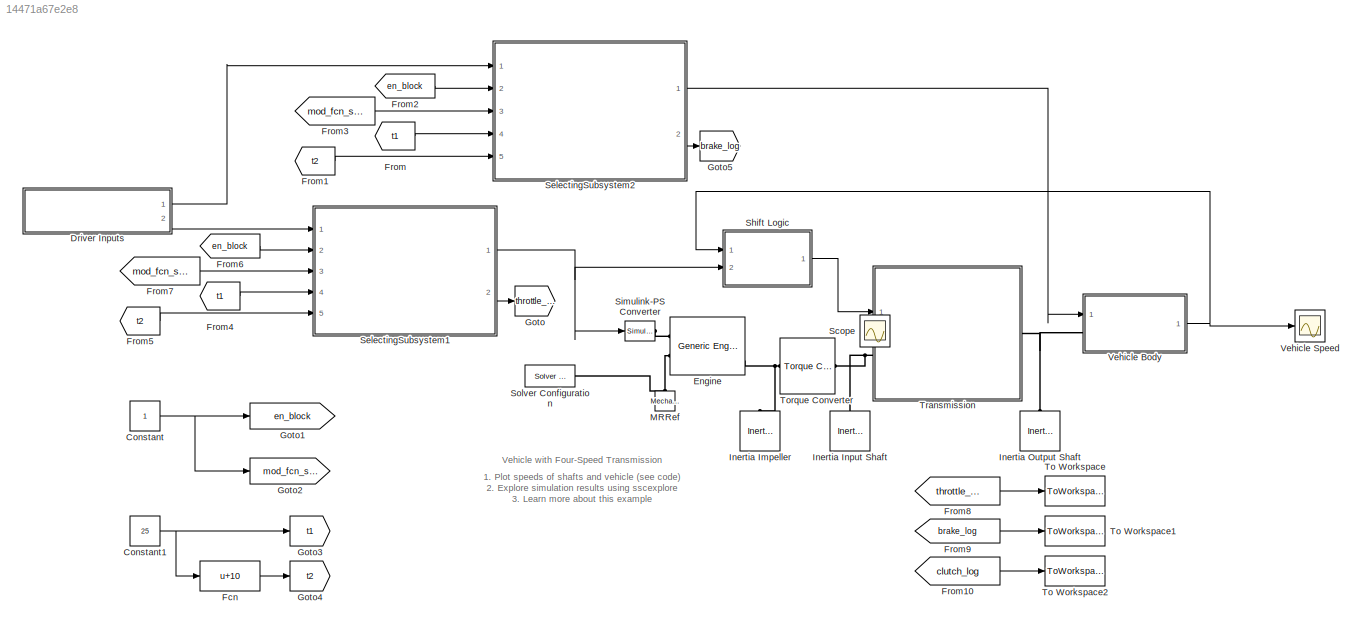
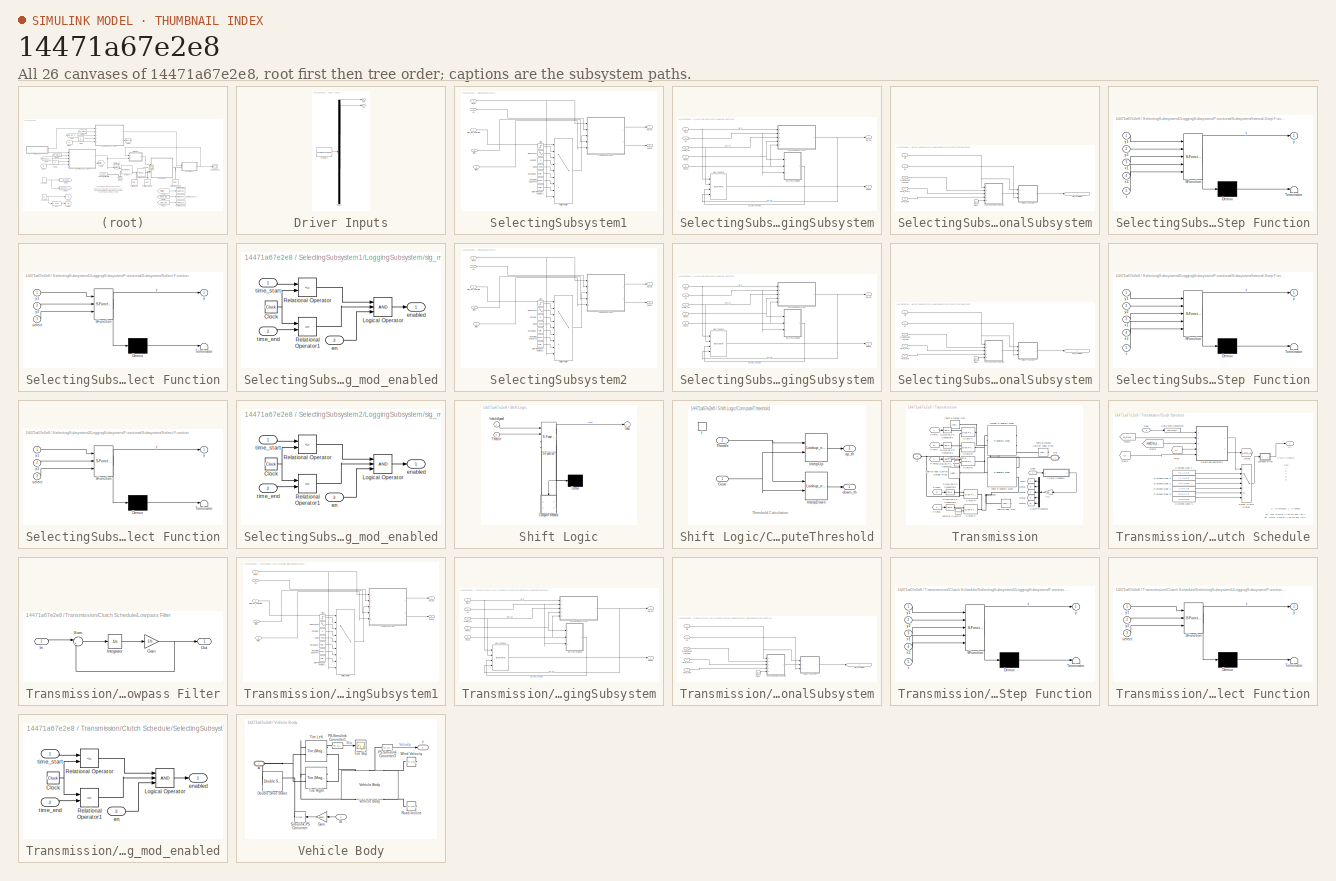
[diagram: thumbnail index - all 26 canvases of the model, root first then tree order]
MODEL slx_14471a67e2e8
KIND model
CONFIG AbsTol = 1e-3
CONFIG EnableMultiTasking = on
CONFIG FixedStep = 1e-3
CONFIG MaxStep = auto
CONFIG MinStep = auto
CONFIG RelTol = 1e-3
CONFIG SampleTimeConstraint = Unconstrained
CONFIG Solver = VariableStepAuto
CONFIG SolverName = VariableStepAuto
CONFIG StartTime = 0.0
CONFIG StopTime = 50
WORKSPACE source: MAT-file member
WORKSPACE DOWN_TABLE = [0 0 0 0 0 0 5 5 5 5 30 30 ... (24 elements, 6x4)]
BLOCK [Constant] Constant
BLOCK [Constant] Constant1
  Value = 25
BLOCK [SubSystem] Driver Inputs
  ClipboardFcn = sigbuilder_block('clipboard');
  CloseFcn = sigbuilder_block('close');
  ContinueFcn = sigbuilder_block('continue')
  CopyFcn = sigbuilder_block('copy');
  DeleteFcn = sigbuilder_block('delete');
  LoadFcn = sigbuilder_block('load');
  MaskHideContents = on
  ModelCloseFcn = sigbuilder_block('modelClose');
  NameChangeFcn = sigbuilder_block('namechange');
  OpenFcn = sigbuilder_block('open',[260 115.5 413.5 322.5 ]);
  PauseFcn = sigbuilder_block('pause')
  Ports = [0, 2]
  PreSaveFcn = sigbuilder_block('preSave');
  RequestExecContextInheritance = off
  StartFcn = sigbuilder_block('start');
  StopFcn = sigbuilder_block('stop');
  Tag = STV Subsys
BLOCK [Outport] Driver Inputs/Brk
  IconDisplay = Port number
  Tag = STV Outport
BLOCK [Demux] Driver Inputs/Demux
  Outputs = 2
  Ports = [1, 2]
  Tag = STV Demux
BLOCK [FromWorkspace] Driver Inputs/FromWs
  SampleTime = 0
  Tag = STV FromWs
  VariableName = tuvar
  ZeroCross = on
BLOCK [Outport] Driver Inputs/Thr
  IconDisplay = Port number
  Port = 2
  Tag = STV Outport
BLOCK [Reference] Engine  REF=sdl_lib/Engines/Generic Engine
  Ports = [0, 0, 0, 0, 0, 2, 3]
  SourceBlock = sdl_lib/Engines/Generic Engine
  SourceProductBaseCode = LD
  SourceProductName = Simscape Driveline
  SourceType = Generic Engine
BLOCK [Fcn] Fcn
  Expr = u+10
BLOCK [From] From
  GotoTag = t1
BLOCK [From] From1
  GotoTag = t2
BLOCK [From] From10
  GotoTag = clutch_log
BLOCK [From] From2
  GotoTag = en_block
BLOCK [From] From3
  GotoTag = mod_fcn_sel
BLOCK [From] From4
  GotoTag = t1
BLOCK [From] From5
  GotoTag = t2
BLOCK [From] From6
  GotoTag = en_block
BLOCK [From] From7
  GotoTag = mod_fcn_sel
BLOCK [From] From8
  GotoTag = throttle_log
BLOCK [From] From9
  GotoTag = brake_log
BLOCK [Goto] Goto
  GotoTag = throttle_log
BLOCK [Goto] Goto1
  GotoTag = en_block
BLOCK [Goto] Goto2
  GotoTag = mod_fcn_sel
BLOCK [Goto] Goto3
  GotoTag = t1
BLOCK [Goto] Goto4
  GotoTag = t2
BLOCK [Goto] Goto5
  GotoTag = brake_log
BLOCK [Reference] Inertia Impeller  REF=fl_lib/Mechanical/Rotational Elements/Inertia
  Ports = [0, 0, 0, 0, 0, 1]
  SourceBlock = fl_lib/Mechanical/Rotational Elements/Inertia
  SourceProductBaseCode = SS
  SourceProductName = Simscape
  SourceType = Inertia
BLOCK [Reference] Inertia Input Shaft  REF=fl_lib/Mechanical/Rotational Elements/Inertia
  Ports = [0, 0, 0, 0, 0, 1]
  SourceBlock = fl_lib/Mechanical/Rotational Elements/Inertia
  SourceProductBaseCode = SS
  SourceProductName = Simscape
  SourceType = Inertia
BLOCK [Reference] Inertia Output Shaft  REF=fl_lib/Mechanical/Rotational Elements/Inertia
  Ports = [0, 0, 0, 0, 0, 1]
  SourceBlock = fl_lib/Mechanical/Rotational Elements/Inertia
  SourceProductBaseCode = SS
  SourceProductName = Simscape
  SourceType = Inertia
BLOCK [Reference] MRRef  REF=fl_lib/Mechanical/Rotational Elements/Mechanical
Rotational Reference
  Ports = [0, 0, 0, 0, 0, 1]
  SourceBlock = fl_lib/Mechanical/Rotational Elements/Mechanical\nRotational Reference
  SourceProductBaseCode = SS
  SourceProductName = Simscape
  SourceType = Mechanical\nRotational Reference
BLOCK [Scope] Scope
  Floating = off
  IOType = viewer
  NumInputPorts = 1
  Ports = []
  ScopeSpecificationString = Simulink.scopes.TimeScopeBlockCfg('CurrentConfiguration', extmgr.ConfigurationSet(extmgr.Configuration('Core','General UI',true),extmgr.Configuration('Core','Source UI',true),extmgr.Configuration('Sources','WiredSimulink',true,'DataLoggingVariableName','ScopeData1'),extmgr.Configuration('Visuals','Time Domain',true,'SerializedDisplays',{struct('MinYLimReal','0.625','MaxYLimReal','4.375','YLabelRea...<+2028ch>
BLOCK [SubSystem] SelectingSubsystem1
  Ports = [5, 2]
  RequestExecContextInheritance = off
BLOCK [Reference] SelectingSubsystem1/Chirp Signal  REF=simulink/Sources/Chirp Signal
  Ports = [0, 1]
  SourceBlock = simulink/Sources/Chirp Signal
  SourceProductBaseCode = SL
  SourceProductName = Simulink
  SourceType = chirp
BLOCK [Constant] SelectingSubsystem1/Constant
  Value = pi
BLOCK [SubSystem] SelectingSubsystem1/LoggingSubsystem
  Ports = [5, 2]
  RequestExecContextInheritance = off
BLOCK [BusCreator] SelectingSubsystem1/LoggingSubsystem/Bus Creator
  DisplayOption = bar
  InheritFromInputs = on
  Inputs = sig_in,mod_fcn,sig_mod_enabled,sig_out
  Ports = [4, 1]
BLOCK [SubSystem] SelectingSubsystem1/LoggingSubsystem/FunctionalSubsystem
  Ports = [5, 1]
  RequestExecContextInheritance = off
  TreatAsAtomicUnit = on
BLOCK [Clock] SelectingSubsystem1/LoggingSubsystem/FunctionalSubsystem/Clock
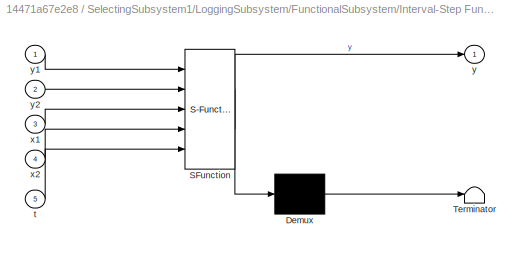
BLOCK [SubSystem] SelectingSubsystem1/LoggingSubsystem/FunctionalSubsystem/Interval-Step Function
  ErrorFcn = Stateflow.Translate.translate
  PermitHierarchicalResolution = ExplicitOnly
  Ports = [5, 1]
  RequestExecContextInheritance = off
  SFBlockType = MATLAB Function
  TreatAsAtomicUnit = on
BLOCK [Demux] SelectingSubsystem1/LoggingSubsystem/FunctionalSubsystem/Interval-Step Function/ Demux 
  Outputs = 1
  Ports = [1, 1]
BLOCK [S-Function] SelectingSubsystem1/LoggingSubsystem/FunctionalSubsystem/Interval-Step Function/ SFunction 
  EnableBusSupport = on
  FunctionName = sf_sfun
  PortCounts = [5 2]
  Ports = [5, 2]
  SFcnIsStateOwnerBlock = off
  SFunctionDeploymentMode = off
  Tag = Stateflow S-Function sdl_car_customized 6
BLOCK [Terminator] SelectingSubsystem1/LoggingSubsystem/FunctionalSubsystem/Interval-Step Function/ Terminator 
BLOCK [Inport] SelectingSubsystem1/LoggingSubsystem/FunctionalSubsystem/Interval-Step Function/t
  IconDisplay = Port number
  Port = 5
BLOCK [Inport] SelectingSubsystem1/LoggingSubsystem/FunctionalSubsystem/Interval-Step Function/x1
  IconDisplay = Port number
  Port = 3
BLOCK [Inport] SelectingSubsystem1/LoggingSubsystem/FunctionalSubsystem/Interval-Step Function/x2
  IconDisplay = Port number
  Port = 4
BLOCK [Outport] SelectingSubsystem1/LoggingSubsystem/FunctionalSubsystem/Interval-Step Function/y
  IconDisplay = Port number
BLOCK [Inport] SelectingSubsystem1/LoggingSubsystem/FunctionalSubsystem/Interval-Step Function/y1
  IconDisplay = Port number
BLOCK [Inport] SelectingSubsystem1/LoggingSubsystem/FunctionalSubsystem/Interval-Step Function/y2
  IconDisplay = Port number
  Port = 2
BLOCK [SubSystem] SelectingSubsystem1/LoggingSubsystem/FunctionalSubsystem/Select Function
  ErrorFcn = Stateflow.Translate.translate
  PermitHierarchicalResolution = ExplicitOnly
  Ports = [3, 1]
  RequestExecContextInheritance = off
  SFBlockType = MATLAB Function
  TreatAsAtomicUnit = on
BLOCK [Demux] SelectingSubsystem1/LoggingSubsystem/FunctionalSubsystem/Select Function/ Demux 
  Outputs = 1
  Ports = [1, 1]
BLOCK [S-Function] SelectingSubsystem1/LoggingSubsystem/FunctionalSubsystem/Select Function/ SFunction 
  EnableBusSupport = on
  FunctionName = sf_sfun
  PortCounts = [3 2]
  Ports = [3, 2]
  SFcnIsStateOwnerBlock = off
  SFunctionDeploymentMode = off
  Tag = Stateflow S-Function sdl_car_customized 7
BLOCK [Terminator] SelectingSubsystem1/LoggingSubsystem/FunctionalSubsystem/Select Function/ Terminator 
BLOCK [Inport] SelectingSubsystem1/LoggingSubsystem/FunctionalSubsystem/Select Function/select
  IconDisplay = Port number
  Port = 3
BLOCK [Outport] SelectingSubsystem1/LoggingSubsystem/FunctionalSubsystem/Select Function/y
  IconDisplay = Port number
BLOCK [Inport] SelectingSubsystem1/LoggingSubsystem/FunctionalSubsystem/Select Function/y1
  IconDisplay = Port number
BLOCK [Inport] SelectingSubsystem1/LoggingSubsystem/FunctionalSubsystem/Select Function/y2
  IconDisplay = Port number
  Port = 2
BLOCK [Inport] SelectingSubsystem1/LoggingSubsystem/FunctionalSubsystem/en
  IconDisplay = Port number
  Port = 2
BLOCK [Inport] SelectingSubsystem1/LoggingSubsystem/FunctionalSubsystem/modification function
  IconDisplay = Port number
  Port = 3
BLOCK [Inport] SelectingSubsystem1/LoggingSubsystem/FunctionalSubsystem/sig
  IconDisplay = Port number
BLOCK [Outport] SelectingSubsystem1/LoggingSubsystem/FunctionalSubsystem/sig_modified
  IconDisplay = Port number
BLOCK [Inport] SelectingSubsystem1/LoggingSubsystem/FunctionalSubsystem/time_end
  IconDisplay = Port number
  Port = 5
BLOCK [Inport] SelectingSubsystem1/LoggingSubsystem/FunctionalSubsystem/time_start
  IconDisplay = Port number
  Port = 4
BLOCK [Inport] SelectingSubsystem1/LoggingSubsystem/en
  IconDisplay = Port number
  Port = 2
BLOCK [Outport] SelectingSubsystem1/LoggingSubsystem/logbus
  IconDisplay = Port number
  Port = 2
BLOCK [Inport] SelectingSubsystem1/LoggingSubsystem/mod_fcn
  IconDisplay = Port number
  Port = 3
BLOCK [Inport] SelectingSubsystem1/LoggingSubsystem/sig_in
  IconDisplay = Port number
BLOCK [SubSystem] SelectingSubsystem1/LoggingSubsystem/sig_mod_enabled
  Ports = [3, 1]
  RequestExecContextInheritance = off
BLOCK [Clock] SelectingSubsystem1/LoggingSubsystem/sig_mod_enabled/Clock
BLOCK [Logic] SelectingSubsystem1/LoggingSubsystem/sig_mod_enabled/Logical Operator
  AllPortsSameDT = off
  Inputs = 3
  OutDataTypeStr = boolean
  Ports = [3, 1]
BLOCK [RelationalOperator] SelectingSubsystem1/LoggingSubsystem/sig_mod_enabled/Relational Operator
  InputSameDT = off
  Operator = <=
  OutDataTypeStr = boolean
  Ports = [2, 1]
  RndMeth = Simplest
BLOCK [RelationalOperator] SelectingSubsystem1/LoggingSubsystem/sig_mod_enabled/Relational Operator1
  InputSameDT = off
  Operator = <=
  OutDataTypeStr = boolean
  Ports = [2, 1]
  RndMeth = Simplest
BLOCK [Inport] SelectingSubsystem1/LoggingSubsystem/sig_mod_enabled/en
  IconDisplay = Port number
  Port = 3
BLOCK [Outport] SelectingSubsystem1/LoggingSubsystem/sig_mod_enabled/enabled
  IconDisplay = Port number
BLOCK [Inport] SelectingSubsystem1/LoggingSubsystem/sig_mod_enabled/time_end
  IconDisplay = Port number
  Port = 2
BLOCK [Inport] SelectingSubsystem1/LoggingSubsystem/sig_mod_enabled/time_start
  IconDisplay = Port number
BLOCK [Outport] SelectingSubsystem1/LoggingSubsystem/sig_out
  IconDisplay = Port number
BLOCK [Inport] SelectingSubsystem1/LoggingSubsystem/time1
  IconDisplay = Port number
  Port = 4
BLOCK [Inport] SelectingSubsystem1/LoggingSubsystem/time2
  IconDisplay = Port number
  Port = 5
BLOCK [MultiPortSwitch] SelectingSubsystem1/Multiport Switch
  DataPortForDefault = Additional data port
  DiagnosticForDefault = Warning
  InputSameDT = off
  Inputs = 7
  Ports = [9, 1]
  SaturateOnIntegerOverflow = off
BLOCK [Reference] SelectingSubsystem1/Ramp  REF=simulink/Sources/Ramp
  Ports = [0, 1]
  SourceBlock = simulink/Sources/Ramp
  SourceProductBaseCode = SL
  SourceProductName = Simulink
  SourceType = Ramp
BLOCK [Reference] SelectingSubsystem1/Repeating Sequence  REF=simulink/Sources/Repeating
Sequence
  Ports = [0, 1]
  SourceBlock = simulink/Sources/Repeating\nSequence
  SourceProductBaseCode = SL
  SourceProductName = Simulink
  SourceType = Repeating table
BLOCK [Sin] SelectingSubsystem1/Sine Wave1
  Frequency = 1000
  Ports = [0, 1]
  SampleTime = 0
BLOCK [Step] SelectingSubsystem1/Step
  SampleTime = 0
  Time = 5
BLOCK [UniformRandomNumber] SelectingSubsystem1/Uniform Random Number1
  Maximum = 10
  Minimum = -10
  SampleTime = 0.1
  Seed = randi(intmax)
BLOCK [Inport] SelectingSubsystem1/en
  IconDisplay = Port number
  Port = 2
BLOCK [Outport] SelectingSubsystem1/logbus
  IconDisplay = Port number
  Port = 2
BLOCK [Inport] SelectingSubsystem1/mod_fcn_select[1:8]
  IconDisplay = Port number
  Port = 3
BLOCK [Inport] SelectingSubsystem1/sig_in
  IconDisplay = Port number
BLOCK [Outport] SelectingSubsystem1/sig_out
  IconDisplay = Port number
BLOCK [Inport] SelectingSubsystem1/time1
  IconDisplay = Port number
  Port = 4
BLOCK [Inport] SelectingSubsystem1/time2
  IconDisplay = Port number
  Port = 5
BLOCK [SubSystem] SelectingSubsystem2
  Ports = [5, 2]
  RequestExecContextInheritance = off
BLOCK [Reference] SelectingSubsystem2/Chirp Signal  REF=simulink/Sources/Chirp Signal
  Ports = [0, 1]
  SourceBlock = simulink/Sources/Chirp Signal
  SourceProductBaseCode = SL
  SourceProductName = Simulink
  SourceType = chirp
BLOCK [Constant] SelectingSubsystem2/Constant
  Value = pi
BLOCK [SubSystem] SelectingSubsystem2/LoggingSubsystem
  Ports = [5, 2]
  RequestExecContextInheritance = off
BLOCK [BusCreator] SelectingSubsystem2/LoggingSubsystem/Bus Creator
  DisplayOption = bar
  InheritFromInputs = on
  Inputs = sig_in,mod_fcn,sig_mod_enabled,sig_out
  Ports = [4, 1]
BLOCK [SubSystem] SelectingSubsystem2/LoggingSubsystem/FunctionalSubsystem
  Ports = [5, 1]
  RequestExecContextInheritance = off
  TreatAsAtomicUnit = on
BLOCK [Clock] SelectingSubsystem2/LoggingSubsystem/FunctionalSubsystem/Clock
BLOCK [SubSystem] SelectingSubsystem2/LoggingSubsystem/FunctionalSubsystem/Interval-Step Function
  ErrorFcn = Stateflow.Translate.translate
  PermitHierarchicalResolution = ExplicitOnly
  Ports = [5, 1]
  RequestExecContextInheritance = off
  SFBlockType = MATLAB Function
  TreatAsAtomicUnit = on
BLOCK [Demux] SelectingSubsystem2/LoggingSubsystem/FunctionalSubsystem/Interval-Step Function/ Demux 
  Outputs = 1
  Ports = [1, 1]
BLOCK [S-Function] SelectingSubsystem2/LoggingSubsystem/FunctionalSubsystem/Interval-Step Function/ SFunction 
  EnableBusSupport = on
  FunctionName = sf_sfun
  PortCounts = [5 2]
  Ports = [5, 2]
  SFcnIsStateOwnerBlock = off
  SFunctionDeploymentMode = off
  Tag = Stateflow S-Function sdl_car_customized 2
BLOCK [Terminator] SelectingSubsystem2/LoggingSubsystem/FunctionalSubsystem/Interval-Step Function/ Terminator 
BLOCK [Inport] SelectingSubsystem2/LoggingSubsystem/FunctionalSubsystem/Interval-Step Function/t
  IconDisplay = Port number
  Port = 5
BLOCK [Inport] SelectingSubsystem2/LoggingSubsystem/FunctionalSubsystem/Interval-Step Function/x1
  IconDisplay = Port number
  Port = 3
BLOCK [Inport] SelectingSubsystem2/LoggingSubsystem/FunctionalSubsystem/Interval-Step Function/x2
  IconDisplay = Port number
  Port = 4
BLOCK [Outport] SelectingSubsystem2/LoggingSubsystem/FunctionalSubsystem/Interval-Step Function/y
  IconDisplay = Port number
BLOCK [Inport] SelectingSubsystem2/LoggingSubsystem/FunctionalSubsystem/Interval-Step Function/y1
  IconDisplay = Port number
BLOCK [Inport] SelectingSubsystem2/LoggingSubsystem/FunctionalSubsystem/Interval-Step Function/y2
  IconDisplay = Port number
  Port = 2
BLOCK [SubSystem] SelectingSubsystem2/LoggingSubsystem/FunctionalSubsystem/Select Function
  ErrorFcn = Stateflow.Translate.translate
  PermitHierarchicalResolution = ExplicitOnly
  Ports = [3, 1]
  RequestExecContextInheritance = off
  SFBlockType = MATLAB Function
  TreatAsAtomicUnit = on
BLOCK [Demux] SelectingSubsystem2/LoggingSubsystem/FunctionalSubsystem/Select Function/ Demux 
  Outputs = 1
  Ports = [1, 1]
BLOCK [S-Function] SelectingSubsystem2/LoggingSubsystem/FunctionalSubsystem/Select Function/ SFunction 
  EnableBusSupport = on
  FunctionName = sf_sfun
  PortCounts = [3 2]
  Ports = [3, 2]
  SFcnIsStateOwnerBlock = off
  SFunctionDeploymentMode = off
  Tag = Stateflow S-Function sdl_car_customized 4
BLOCK [Terminator] SelectingSubsystem2/LoggingSubsystem/FunctionalSubsystem/Select Function/ Terminator 
BLOCK [Inport] SelectingSubsystem2/LoggingSubsystem/FunctionalSubsystem/Select Function/select
  IconDisplay = Port number
  Port = 3
BLOCK [Outport] SelectingSubsystem2/LoggingSubsystem/FunctionalSubsystem/Select Function/y
  IconDisplay = Port number
BLOCK [Inport] SelectingSubsystem2/LoggingSubsystem/FunctionalSubsystem/Select Function/y1
  IconDisplay = Port number
BLOCK [Inport] SelectingSubsystem2/LoggingSubsystem/FunctionalSubsystem/Select Function/y2
  IconDisplay = Port number
  Port = 2
BLOCK [Inport] SelectingSubsystem2/LoggingSubsystem/FunctionalSubsystem/en
  IconDisplay = Port number
  Port = 2
BLOCK [Inport] SelectingSubsystem2/LoggingSubsystem/FunctionalSubsystem/modification function
  IconDisplay = Port number
  Port = 3
BLOCK [Inport] SelectingSubsystem2/LoggingSubsystem/FunctionalSubsystem/sig
  IconDisplay = Port number
BLOCK [Outport] SelectingSubsystem2/LoggingSubsystem/FunctionalSubsystem/sig_modified
  IconDisplay = Port number
BLOCK [Inport] SelectingSubsystem2/LoggingSubsystem/FunctionalSubsystem/time_end
  IconDisplay = Port number
  Port = 5
BLOCK [Inport] SelectingSubsystem2/LoggingSubsystem/FunctionalSubsystem/time_start
  IconDisplay = Port number
  Port = 4
BLOCK [Inport] SelectingSubsystem2/LoggingSubsystem/en
  IconDisplay = Port number
  Port = 2
BLOCK [Outport] SelectingSubsystem2/LoggingSubsystem/logbus
  IconDisplay = Port number
  Port = 2
BLOCK [Inport] SelectingSubsystem2/LoggingSubsystem/mod_fcn
  IconDisplay = Port number
  Port = 3
BLOCK [Inport] SelectingSubsystem2/LoggingSubsystem/sig_in
  IconDisplay = Port number
BLOCK [SubSystem] SelectingSubsystem2/LoggingSubsystem/sig_mod_enabled
  Ports = [3, 1]
  RequestExecContextInheritance = off
BLOCK [Clock] SelectingSubsystem2/LoggingSubsystem/sig_mod_enabled/Clock
BLOCK [Logic] SelectingSubsystem2/LoggingSubsystem/sig_mod_enabled/Logical Operator
  AllPortsSameDT = off
  Inputs = 3
  OutDataTypeStr = boolean
  Ports = [3, 1]
BLOCK [RelationalOperator] SelectingSubsystem2/LoggingSubsystem/sig_mod_enabled/Relational Operator
  InputSameDT = off
  Operator = <=
  OutDataTypeStr = boolean
  Ports = [2, 1]
  RndMeth = Simplest
BLOCK [RelationalOperator] SelectingSubsystem2/LoggingSubsystem/sig_mod_enabled/Relational Operator1
  InputSameDT = off
  Operator = <=
  OutDataTypeStr = boolean
  Ports = [2, 1]
  RndMeth = Simplest
BLOCK [Inport] SelectingSubsystem2/LoggingSubsystem/sig_mod_enabled/en
  IconDisplay = Port number
  Port = 3
BLOCK [Outport] SelectingSubsystem2/LoggingSubsystem/sig_mod_enabled/enabled
  IconDisplay = Port number
BLOCK [Inport] SelectingSubsystem2/LoggingSubsystem/sig_mod_enabled/time_end
  IconDisplay = Port number
  Port = 2
BLOCK [Inport] SelectingSubsystem2/LoggingSubsystem/sig_mod_enabled/time_start
  IconDisplay = Port number
BLOCK [Outport] SelectingSubsystem2/LoggingSubsystem/sig_out
  IconDisplay = Port number
BLOCK [Inport] SelectingSubsystem2/LoggingSubsystem/time1
  IconDisplay = Port number
  Port = 4
BLOCK [Inport] SelectingSubsystem2/LoggingSubsystem/time2
  IconDisplay = Port number
  Port = 5
BLOCK [MultiPortSwitch] SelectingSubsystem2/Multiport Switch
  DataPortForDefault = Additional data port
  DiagnosticForDefault = Warning
  InputSameDT = off
  Inputs = 7
  Ports = [9, 1]
  SaturateOnIntegerOverflow = off
BLOCK [Reference] SelectingSubsystem2/Ramp  REF=simulink/Sources/Ramp
  Ports = [0, 1]
  SourceBlock = simulink/Sources/Ramp
  SourceProductBaseCode = SL
  SourceProductName = Simulink
  SourceType = Ramp
BLOCK [Reference] SelectingSubsystem2/Repeating Sequence  REF=simulink/Sources/Repeating
Sequence
  Ports = [0, 1]
  SourceBlock = simulink/Sources/Repeating\nSequence
  SourceProductBaseCode = SL
  SourceProductName = Simulink
  SourceType = Repeating table
BLOCK [Sin] SelectingSubsystem2/Sine Wave1
  Frequency = 1000
  Ports = [0, 1]
  SampleTime = 0
BLOCK [Step] SelectingSubsystem2/Step
  SampleTime = 0
  Time = 5
BLOCK [UniformRandomNumber] SelectingSubsystem2/Uniform Random Number1
  Maximum = 10
  Minimum = -10
  SampleTime = 0.1
  Seed = randi(intmax)
BLOCK [Inport] SelectingSubsystem2/en
  IconDisplay = Port number
  Port = 2
BLOCK [Outport] SelectingSubsystem2/logbus
  IconDisplay = Port number
  Port = 2
BLOCK [Inport] SelectingSubsystem2/mod_fcn_select[1:8]
  IconDisplay = Port number
  Port = 3
BLOCK [Inport] SelectingSubsystem2/sig_in
  IconDisplay = Port number
BLOCK [Outport] SelectingSubsystem2/sig_out
  IconDisplay = Port number
BLOCK [Inport] SelectingSubsystem2/time1
  IconDisplay = Port number
  Port = 4
BLOCK [Inport] SelectingSubsystem2/time2
  IconDisplay = Port number
  Port = 5
BLOCK [SubSystem] Shift Logic
  ErrorFcn = Stateflow.Translate.translate
  PermitHierarchicalResolution = ExplicitOnly
  Ports = [2, 1]
  RequestExecContextInheritance = off
  SFBlockType = Chart
  Tag = PublishSubsystem
  TreatAsAtomicUnit = on
BLOCK [Demux] Shift Logic/ Demux 
  Outputs = 1
  Ports = [1, 1]
BLOCK [S-Function] Shift Logic/ SFunction 
  EnableBusSupport = on
  FunctionName = sf_sfun
  Parameters = TWAIT
  PortCounts = [4 4]
  Ports = [4, 4]
  SFcnIsStateOwnerBlock = off
  SFunctionDeploymentMode = off
  Tag = Stateflow S-Function sdl_car_customized 1
BLOCK [SubSystem] Shift Logic/ComputeThreshold
  Ports = [2, 2, 0, 1]
  PreDeleteFcn = Stateflow.SLINSF.SimulinkMan.removePreDeleteFcn
  RequestExecContextInheritance = off
  UndoDeleteFcn = Stateflow.SLINSF.SimulinkMan.restorePreDeleteFcn
BLOCK [Inport] Shift Logic/ComputeThreshold/Gear
  IconDisplay = Port number
BLOCK [Lookup_n-D] Shift Logic/ComputeThreshold/InterpDown
  BreakpointsForDimension1 = DOWN_TH_BP
  BreakpointsForDimension2 = [1:4]
  InputSameDT = off
  LockScale = on
  LookupTableObject = ''
  OutDataTypeStr = double
  Ports = [2, 1]
  Table = DOWN_TABLE
BLOCK [Lookup_n-D] Shift Logic/ComputeThreshold/InterpUp
  BreakpointsForDimension1 = UP_TH_BP
  BreakpointsForDimension2 = [1:4]
  InputSameDT = off
  LockScale = on
  LookupTableObject = ''
  OutDataTypeStr = double
  Ports = [2, 1]
  Table = UP_TABLE
BLOCK [Inport] Shift Logic/ComputeThreshold/Throttle
  IconDisplay = Port number
  Port = 2
BLOCK [Outport] Shift Logic/ComputeThreshold/down_th
  IconDisplay = Port number
  InitialOutput = 0
BLOCK [TriggerPort] Shift Logic/ComputeThreshold/f
  CopyFcn = Stateflow.SLINSF.SimulinkMan.removeBlockPreDeleteFcn
  Ports = []
  PreDeleteFcn = Stateflow.SLINSF.SimulinkMan.unsafePredeleteFcn
  StatesWhenEnabling = held
  TriggerType = function-call
  VariantControl = Variant
BLOCK [Outport] Shift Logic/ComputeThreshold/up_th
  IconDisplay = Port number
  InitialOutput = 0
  Port = 2
BLOCK [Outport] Shift Logic/Gear
  IconDisplay = Port number
BLOCK [Inport] Shift Logic/Throttle
  IconDisplay = Port number
  Port = 2
BLOCK [Inport] Shift Logic/VehicleSpeed
  IconDisplay = Port number
BLOCK [Reference] Simulink-PS Converter  REF=nesl_utility/Simulink-PS
Converter
  Ports = [1, 0, 0, 0, 0, 0, 1]
  SourceBlock = nesl_utility/Simulink-PS\nConverter
  SourceProductBaseCode = SS
  SourceProductName = Simscape
  SourceType = Simulink-PS\nConverter
BLOCK [Reference] Solver Configuration  REF=nesl_utility/Solver
Configuration
  Ports = [0, 0, 0, 0, 0, 0, 1]
  SourceBlock = nesl_utility/Solver\nConfiguration
  SourceProductBaseCode = SS
  SourceProductName = Simscape
  SourceType = Solver\nConfiguration
BLOCK [ToWorkspace] To Workspace
  FixptAsFi = on
  MaxDataPoints = inf
  Ports = [1]
  SampleTime = -1
  SaveFormat = Timeseries
  VariableName = throttle_log
BLOCK [ToWorkspace] To Workspace1
  FixptAsFi = on
  MaxDataPoints = inf
  Ports = [1]
  SampleTime = -1
  SaveFormat = Timeseries
  VariableName = brake_log
BLOCK [ToWorkspace] To Workspace2
  FixptAsFi = on
  MaxDataPoints = inf
  Ports = [1]
  SampleTime = -1
  SaveFormat = Timeseries
  VariableName = clutch_log
BLOCK [Reference] Torque Converter  REF=sdl_lib/Couplings & Drives/Torque Converter
  Ports = [0, 0, 0, 0, 0, 1, 1]
  SourceBlock = sdl_lib/Couplings & Drives/Torque Converter
  SourceProductBaseCode = LD
  SourceProductName = Simscape Driveline
  SourceType = Torque Converter
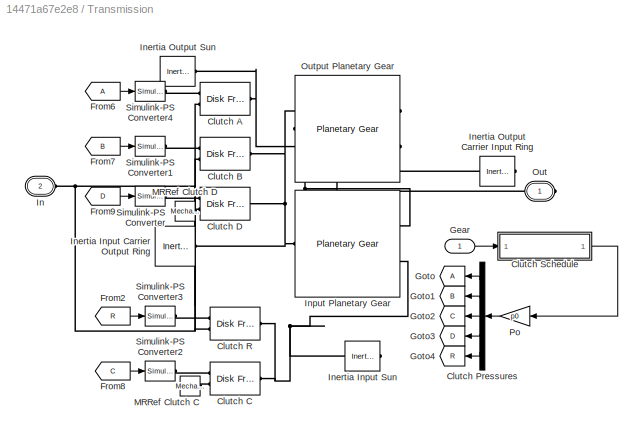
BLOCK [SubSystem] Transmission
  Ports = [1, 0, 0, 0, 0, 1, 1]
  RequestExecContextInheritance = off
  Tag = PublishSubsystem
BLOCK [Reference] Transmission/Clutch A  REF=sdl_lib/Clutches/Disk Friction Clutch
  Ports = [0, 0, 0, 0, 0, 2, 1]
  SourceBlock = sdl_lib/Clutches/Disk Friction Clutch
  SourceProductBaseCode = LD
  SourceProductName = Simscape Driveline
  SourceType = Disk Friction Clutch
BLOCK [Reference] Transmission/Clutch B  REF=sdl_lib/Clutches/Disk Friction Clutch
  Ports = [0, 0, 0, 0, 0, 2, 1]
  SourceBlock = sdl_lib/Clutches/Disk Friction Clutch
  SourceProductBaseCode = LD
  SourceProductName = Simscape Driveline
  SourceType = Disk Friction Clutch
BLOCK [Reference] Transmission/Clutch C  REF=sdl_lib/Clutches/Disk Friction Clutch
  Ports = [0, 0, 0, 0, 0, 2, 1]
  SourceBlock = sdl_lib/Clutches/Disk Friction Clutch
  SourceProductBaseCode = LD
  SourceProductName = Simscape Driveline
  SourceType = Disk Friction Clutch
BLOCK [Reference] Transmission/Clutch D  REF=sdl_lib/Clutches/Disk Friction Clutch
  Ports = [0, 0, 0, 0, 0, 2, 1]
  SourceBlock = sdl_lib/Clutches/Disk Friction Clutch
  SourceProductBaseCode = LD
  SourceProductName = Simscape Driveline
  SourceType = Disk Friction Clutch
BLOCK [Demux] Transmission/Clutch Pressures
  DisplayOption = bar
  Outputs = 5
  Ports = [1, 5]
BLOCK [Reference] Transmission/Clutch R  REF=sdl_lib/Clutches/Disk Friction Clutch
  Ports = [0, 0, 0, 0, 0, 2, 1]
  SourceBlock = sdl_lib/Clutches/Disk Friction Clutch
  SourceProductBaseCode = LD
  SourceProductName = Simscape Driveline
  SourceType = Disk Friction Clutch
BLOCK [SubSystem] Transmission/Clutch Schedule
  Ports = [1, 1]
  RequestExecContextInheritance = off
  Tag = PublishSubsystem
BLOCK [Outport] Transmission/Clutch Schedule/Cl
  IconDisplay = Port number
BLOCK [Constant] Transmission/Clutch Schedule/Clutches Gear 1
  SampleTime = 0
  Value = [1 0 0 1 0]
BLOCK [Constant] Transmission/Clutch Schedule/Clutches Gear 2
  SampleTime = 0
  Value = [1 0 1 0 0]
BLOCK [Constant] Transmission/Clutch Schedule/Clutches Gear 3
  SampleTime = 0
  Value = [1 1 0 0 0]
BLOCK [Constant] Transmission/Clutch Schedule/Clutches Gear 4
  SampleTime = 0
  Value = [0 1 1 0 0]
BLOCK [Constant] Transmission/Clutch Schedule/Clutches Gear N
  SampleTime = 0
  Value = [0 0 0 0 0]
BLOCK [Constant] Transmission/Clutch Schedule/Clutches Gear R
  SampleTime = 0
  Value = [0 0 0 1 1]
BLOCK [DataTypeConversion] Transmission/Clutch Schedule/Data Type Conversion
  RndMeth = Floor
  SaturateOnIntegerOverflow = off
BLOCK [From] Transmission/Clutch Schedule/From
  GotoTag = t1
BLOCK [From] Transmission/Clutch Schedule/From1
  GotoTag = t2
BLOCK [From] Transmission/Clutch Schedule/From2
  GotoTag = en_block
BLOCK [From] Transmission/Clutch Schedule/From3
  GotoTag = mod_fcn_sel
BLOCK [Inport] Transmission/Clutch Schedule/Gear
  IconDisplay = Port number
BLOCK [Goto] Transmission/Clutch Schedule/Goto6
  GotoTag = clutch_log
BLOCK [SubSystem] Transmission/Clutch Schedule/Lowpass Filter
  Ports = [1, 1]
  RequestExecContextInheritance = off
BLOCK [Gain] Transmission/Clutch Schedule/Lowpass Filter/Gain
  Gain = 1/b
  OutDataTypeStr = Inherit: Inherit via internal rule
  ParamDataTypeStr = Inherit: Inherit via internal rule
  SaturateOnIntegerOverflow = off
BLOCK [Inport] Transmission/Clutch Schedule/Lowpass Filter/In
  IconDisplay = Port number
BLOCK [Integrator] Transmission/Clutch Schedule/Lowpass Filter/Integrator
  InitialCondition = x_initial*b
  Ports = [1, 1]
BLOCK [Outport] Transmission/Clutch Schedule/Lowpass Filter/Out
  IconDisplay = Port number
BLOCK [Sum] Transmission/Clutch Schedule/Lowpass Filter/Sum
  IconShape = round
  Inputs = |+-
  Ports = [2, 1]
BLOCK [MultiPortSwitch] Transmission/Clutch Schedule/Select Clutch States
  DataPortIndices = {4,3,2,1,-1,0}
  DataPortOrder = Specify indices
  DiagnosticForDefault = None
  InputSameDT = off
  Ports = [7, 1]
  SaturateOnIntegerOverflow = off
BLOCK [SubSystem] Transmission/Clutch Schedule/SelectingSubsystem1
  Ports = [5, 2]
  RequestExecContextInheritance = off
BLOCK [Reference] Transmission/Clutch Schedule/SelectingSubsystem1/Chirp Signal  REF=simulink/Sources/Chirp Signal
  Ports = [0, 1]
  SourceBlock = simulink/Sources/Chirp Signal
  SourceProductBaseCode = SL
  SourceProductName = Simulink
  SourceType = chirp
BLOCK [Constant] Transmission/Clutch Schedule/SelectingSubsystem1/Constant
  Value = pi
BLOCK [SubSystem] Transmission/Clutch Schedule/SelectingSubsystem1/LoggingSubsystem
  Ports = [5, 2]
  RequestExecContextInheritance = off
BLOCK [BusCreator] Transmission/Clutch Schedule/SelectingSubsystem1/LoggingSubsystem/Bus Creator
  DisplayOption = bar
  InheritFromInputs = on
  Inputs = sig_in,mod_fcn,sig_mod_enabled,sig_out
  Ports = [4, 1]
BLOCK [SubSystem] Transmission/Clutch Schedule/SelectingSubsystem1/LoggingSubsystem/FunctionalSubsystem
  Ports = [5, 1]
  RequestExecContextInheritance = off
  TreatAsAtomicUnit = on
BLOCK [Clock] Transmission/Clutch Schedule/SelectingSubsystem1/LoggingSubsystem/FunctionalSubsystem/Clock
BLOCK [SubSystem] Transmission/Clutch Schedule/SelectingSubsystem1/LoggingSubsystem/FunctionalSubsystem/Interval-Step Function
  ErrorFcn = Stateflow.Translate.translate
  PermitHierarchicalResolution = ExplicitOnly
  Ports = [5, 1]
  RequestExecContextInheritance = off
  SFBlockType = MATLAB Function
  TreatAsAtomicUnit = on
BLOCK [Demux] Transmission/Clutch Schedule/SelectingSubsystem1/LoggingSubsystem/FunctionalSubsystem/Interval-Step Function/ Demux 
  Outputs = 1
  Ports = [1, 1]
BLOCK [S-Function] Transmission/Clutch Schedule/SelectingSubsystem1/LoggingSubsystem/FunctionalSubsystem/Interval-Step Function/ SFunction 
  EnableBusSupport = on
  FunctionName = sf_sfun
  PortCounts = [5 2]
  Ports = [5, 2]
  SFcnIsStateOwnerBlock = off
  SFunctionDeploymentMode = off
  Tag = Stateflow S-Function sdl_car_customized 3
BLOCK [Terminator] Transmission/Clutch Schedule/SelectingSubsystem1/LoggingSubsystem/FunctionalSubsystem/Interval-Step Function/ Terminator 
BLOCK [Inport] Transmission/Clutch Schedule/SelectingSubsystem1/LoggingSubsystem/FunctionalSubsystem/Interval-Step Function/t
  IconDisplay = Port number
  Port = 5
BLOCK [Inport] Transmission/Clutch Schedule/SelectingSubsystem1/LoggingSubsystem/FunctionalSubsystem/Interval-Step Function/x1
  IconDisplay = Port number
  Port = 3
BLOCK [Inport] Transmission/Clutch Schedule/SelectingSubsystem1/LoggingSubsystem/FunctionalSubsystem/Interval-Step Function/x2
  IconDisplay = Port number
  Port = 4
BLOCK [Outport] Transmission/Clutch Schedule/SelectingSubsystem1/LoggingSubsystem/FunctionalSubsystem/Interval-Step Function/y
  IconDisplay = Port number
BLOCK [Inport] Transmission/Clutch Schedule/SelectingSubsystem1/LoggingSubsystem/FunctionalSubsystem/Interval-Step Function/y1
  IconDisplay = Port number
BLOCK [Inport] Transmission/Clutch Schedule/SelectingSubsystem1/LoggingSubsystem/FunctionalSubsystem/Interval-Step Function/y2
  IconDisplay = Port number
  Port = 2
BLOCK [SubSystem] Transmission/Clutch Schedule/SelectingSubsystem1/LoggingSubsystem/FunctionalSubsystem/Select Function
  ErrorFcn = Stateflow.Translate.translate
  PermitHierarchicalResolution = ExplicitOnly
  Ports = [3, 1]
  RequestExecContextInheritance = off
  SFBlockType = MATLAB Function
  TreatAsAtomicUnit = on
BLOCK [Demux] Transmission/Clutch Schedule/SelectingSubsystem1/LoggingSubsystem/FunctionalSubsystem/Select Function/ Demux 
  Outputs = 1
  Ports = [1, 1]
BLOCK [S-Function] Transmission/Clutch Schedule/SelectingSubsystem1/LoggingSubsystem/FunctionalSubsystem/Select Function/ SFunction 
  EnableBusSupport = on
  FunctionName = sf_sfun
  PortCounts = [3 2]
  Ports = [3, 2]
  SFcnIsStateOwnerBlock = off
  SFunctionDeploymentMode = off
  Tag = Stateflow S-Function sdl_car_customized 5
BLOCK [Terminator] Transmission/Clutch Schedule/SelectingSubsystem1/LoggingSubsystem/FunctionalSubsystem/Select Function/ Terminator 
BLOCK [Inport] Transmission/Clutch Schedule/SelectingSubsystem1/LoggingSubsystem/FunctionalSubsystem/Select Function/select
  IconDisplay = Port number
  Port = 3
BLOCK [Outport] Transmission/Clutch Schedule/SelectingSubsystem1/LoggingSubsystem/FunctionalSubsystem/Select Function/y
  IconDisplay = Port number
BLOCK [Inport] Transmission/Clutch Schedule/SelectingSubsystem1/LoggingSubsystem/FunctionalSubsystem/Select Function/y1
  IconDisplay = Port number
BLOCK [Inport] Transmission/Clutch Schedule/SelectingSubsystem1/LoggingSubsystem/FunctionalSubsystem/Select Function/y2
  IconDisplay = Port number
  Port = 2
BLOCK [Inport] Transmission/Clutch Schedule/SelectingSubsystem1/LoggingSubsystem/FunctionalSubsystem/en
  IconDisplay = Port number
  Port = 2
BLOCK [Inport] Transmission/Clutch Schedule/SelectingSubsystem1/LoggingSubsystem/FunctionalSubsystem/modification function
  IconDisplay = Port number
  Port = 3
BLOCK [Inport] Transmission/Clutch Schedule/SelectingSubsystem1/LoggingSubsystem/FunctionalSubsystem/sig
  IconDisplay = Port number
BLOCK [Outport] Transmission/Clutch Schedule/SelectingSubsystem1/LoggingSubsystem/FunctionalSubsystem/sig_modified
  IconDisplay = Port number
BLOCK [Inport] Transmission/Clutch Schedule/SelectingSubsystem1/LoggingSubsystem/FunctionalSubsystem/time_end
  IconDisplay = Port number
  Port = 5
BLOCK [Inport] Transmission/Clutch Schedule/SelectingSubsystem1/LoggingSubsystem/FunctionalSubsystem/time_start
  IconDisplay = Port number
  Port = 4
BLOCK [Inport] Transmission/Clutch Schedule/SelectingSubsystem1/LoggingSubsystem/en
  IconDisplay = Port number
  Port = 2
BLOCK [Outport] Transmission/Clutch Schedule/SelectingSubsystem1/LoggingSubsystem/logbus
  IconDisplay = Port number
  Port = 2
BLOCK [Inport] Transmission/Clutch Schedule/SelectingSubsystem1/LoggingSubsystem/mod_fcn
  IconDisplay = Port number
  Port = 3
BLOCK [Inport] Transmission/Clutch Schedule/SelectingSubsystem1/LoggingSubsystem/sig_in
  IconDisplay = Port number
BLOCK [SubSystem] Transmission/Clutch Schedule/SelectingSubsystem1/LoggingSubsystem/sig_mod_enabled
  Ports = [3, 1]
  RequestExecContextInheritance = off
BLOCK [Clock] Transmission/Clutch Schedule/SelectingSubsystem1/LoggingSubsystem/sig_mod_enabled/Clock
BLOCK [Logic] Transmission/Clutch Schedule/SelectingSubsystem1/LoggingSubsystem/sig_mod_enabled/Logical Operator
  AllPortsSameDT = off
  Inputs = 3
  OutDataTypeStr = boolean
  Ports = [3, 1]
BLOCK [RelationalOperator] Transmission/Clutch Schedule/SelectingSubsystem1/LoggingSubsystem/sig_mod_enabled/Relational Operator
  InputSameDT = off
  Operator = <=
  OutDataTypeStr = boolean
  Ports = [2, 1]
  RndMeth = Simplest
BLOCK [RelationalOperator] Transmission/Clutch Schedule/SelectingSubsystem1/LoggingSubsystem/sig_mod_enabled/Relational Operator1
  InputSameDT = off
  Operator = <=
  OutDataTypeStr = boolean
  Ports = [2, 1]
  RndMeth = Simplest
BLOCK [Inport] Transmission/Clutch Schedule/SelectingSubsystem1/LoggingSubsystem/sig_mod_enabled/en
  IconDisplay = Port number
  Port = 3
BLOCK [Outport] Transmission/Clutch Schedule/SelectingSubsystem1/LoggingSubsystem/sig_mod_enabled/enabled
  IconDisplay = Port number
BLOCK [Inport] Transmission/Clutch Schedule/SelectingSubsystem1/LoggingSubsystem/sig_mod_enabled/time_end
  IconDisplay = Port number
  Port = 2
BLOCK [Inport] Transmission/Clutch Schedule/SelectingSubsystem1/LoggingSubsystem/sig_mod_enabled/time_start
  IconDisplay = Port number
BLOCK [Outport] Transmission/Clutch Schedule/SelectingSubsystem1/LoggingSubsystem/sig_out
  IconDisplay = Port number
BLOCK [Inport] Transmission/Clutch Schedule/SelectingSubsystem1/LoggingSubsystem/time1
  IconDisplay = Port number
  Port = 4
BLOCK [Inport] Transmission/Clutch Schedule/SelectingSubsystem1/LoggingSubsystem/time2
  IconDisplay = Port number
  Port = 5
BLOCK [MultiPortSwitch] Transmission/Clutch Schedule/SelectingSubsystem1/Multiport Switch
  DataPortForDefault = Additional data port
  DiagnosticForDefault = Warning
  InputSameDT = off
  Inputs = 7
  Ports = [9, 1]
  SaturateOnIntegerOverflow = off
BLOCK [Reference] Transmission/Clutch Schedule/SelectingSubsystem1/Ramp  REF=simulink/Sources/Ramp
  Ports = [0, 1]
  SourceBlock = simulink/Sources/Ramp
  SourceProductBaseCode = SL
  SourceProductName = Simulink
  SourceType = Ramp
BLOCK [Reference] Transmission/Clutch Schedule/SelectingSubsystem1/Repeating Sequence  REF=simulink/Sources/Repeating
Sequence
  Ports = [0, 1]
  SourceBlock = simulink/Sources/Repeating\nSequence
  SourceProductBaseCode = SL
  SourceProductName = Simulink
  SourceType = Repeating table
BLOCK [Sin] Transmission/Clutch Schedule/SelectingSubsystem1/Sine Wave1
  Frequency = 1000
  Ports = [0, 1]
  SampleTime = 0
BLOCK [Step] Transmission/Clutch Schedule/SelectingSubsystem1/Step
  SampleTime = 0
  Time = 5
BLOCK [UniformRandomNumber] Transmission/Clutch Schedule/SelectingSubsystem1/Uniform Random Number1
  Maximum = 10
  Minimum = -10
  SampleTime = 0.1
  Seed = randi(intmax)
BLOCK [Inport] Transmission/Clutch Schedule/SelectingSubsystem1/en
  IconDisplay = Port number
  Port = 2
BLOCK [Outport] Transmission/Clutch Schedule/SelectingSubsystem1/logbus
  IconDisplay = Port number
  Port = 2
BLOCK [Inport] Transmission/Clutch Schedule/SelectingSubsystem1/mod_fcn_select[1:8]
  IconDisplay = Port number
  Port = 3
BLOCK [Inport] Transmission/Clutch Schedule/SelectingSubsystem1/sig_in
  IconDisplay = Port number
BLOCK [Outport] Transmission/Clutch Schedule/SelectingSubsystem1/sig_out
  IconDisplay = Port number
BLOCK [Inport] Transmission/Clutch Schedule/SelectingSubsystem1/time1
  IconDisplay = Port number
  Port = 4
BLOCK [Inport] Transmission/Clutch Schedule/SelectingSubsystem1/time2
  IconDisplay = Port number
  Port = 5
BLOCK [From] Transmission/From2
  CloseFcn = tagdialog Close
  GotoTag = R
BLOCK [From] Transmission/From6
  CloseFcn = tagdialog Close
BLOCK [From] Transmission/From7
  CloseFcn = tagdialog Close
  GotoTag = B
BLOCK [From] Transmission/From8
  CloseFcn = tagdialog Close
  GotoTag = C
BLOCK [From] Transmission/From9
  CloseFcn = tagdialog Close
  GotoTag = D
BLOCK [Inport] Transmission/Gear
  IconDisplay = Port number
BLOCK [Goto] Transmission/Goto
BLOCK [Goto] Transmission/Goto1
  GotoTag = B
BLOCK [Goto] Transmission/Goto2
  GotoTag = C
BLOCK [Goto] Transmission/Goto3
  GotoTag = D
BLOCK [Goto] Transmission/Goto4
  GotoTag = R
BLOCK [PMIOPort] Transmission/In
  Port = 2
  Side = Left
  Tag = PMCPort
BLOCK [Reference] Transmission/Inertia Input Carrier Output Ring  REF=fl_lib/Mechanical/Rotational Elements/Inertia
  Ports = [0, 0, 0, 0, 0, 1]
  SourceBlock = fl_lib/Mechanical/Rotational Elements/Inertia
  SourceProductBaseCode = SS
  SourceProductName = Simscape
  SourceType = Inertia
BLOCK [Reference] Transmission/Inertia Input Sun  REF=fl_lib/Mechanical/Rotational Elements/Inertia
  Ports = [0, 0, 0, 0, 0, 1]
  SourceBlock = fl_lib/Mechanical/Rotational Elements/Inertia
  SourceProductBaseCode = SS
  SourceProductName = Simscape
  SourceType = Inertia
BLOCK [Reference] Transmission/Inertia Output Carrier Input Ring  REF=fl_lib/Mechanical/Rotational Elements/Inertia
  Ports = [0, 0, 0, 0, 0, 1]
  SourceBlock = fl_lib/Mechanical/Rotational Elements/Inertia
  SourceProductBaseCode = SS
  SourceProductName = Simscape
  SourceType = Inertia
BLOCK [Reference] Transmission/Inertia Output Sun  REF=fl_lib/Mechanical/Rotational Elements/Inertia
  Ports = [0, 0, 0, 0, 0, 1]
  SourceBlock = fl_lib/Mechanical/Rotational Elements/Inertia
  SourceProductBaseCode = SS
  SourceProductName = Simscape
  SourceType = Inertia
BLOCK [Reference] Transmission/Input Planetary Gear   REF=sdl_lib/Gears/Planetary Gear
  Ports = [0, 0, 0, 0, 0, 1, 2]
  SourceBlock = sdl_lib/Gears/Planetary Gear
  SourceProductBaseCode = LD
  SourceProductName = Simscape Driveline
  SourceType = Planetary Gear
BLOCK [Reference] Transmission/MRRef Clutch C  REF=fl_lib/Mechanical/Rotational Elements/Mechanical
Rotational Reference
  Ports = [0, 0, 0, 0, 0, 1]
  SourceBlock = fl_lib/Mechanical/Rotational Elements/Mechanical\nRotational Reference
  SourceProductBaseCode = SS
  SourceProductName = Simscape
  SourceType = Mechanical\nRotational Reference
BLOCK [Reference] Transmission/MRRef Clutch D  REF=fl_lib/Mechanical/Rotational Elements/Mechanical
Rotational Reference
  Ports = [0, 0, 0, 0, 0, 1]
  SourceBlock = fl_lib/Mechanical/Rotational Elements/Mechanical\nRotational Reference
  SourceProductBaseCode = SS
  SourceProductName = Simscape
  SourceType = Mechanical\nRotational Reference
BLOCK [PMIOPort] Transmission/Out
  Side = Right
  Tag = PMCPort
BLOCK [Reference] Transmission/Output Planetary Gear  REF=sdl_lib/Gears/Planetary Gear
  Ports = [0, 0, 0, 0, 0, 1, 2]
  SourceBlock = sdl_lib/Gears/Planetary Gear
  SourceProductBaseCode = LD
  SourceProductName = Simscape Driveline
  SourceType = Planetary Gear
BLOCK [Gain] Transmission/Po
  Gain = p0
  OutDataTypeStr = Inherit: Inherit via internal rule
  ParamDataTypeStr = Inherit: Inherit via internal rule
  SaturateOnIntegerOverflow = off
BLOCK [Reference] Transmission/Simulink-PS Converter  REF=nesl_utility/Simulink-PS
Converter
  Ports = [1, 0, 0, 0, 0, 0, 1]
  SourceBlock = nesl_utility/Simulink-PS\nConverter
  SourceProductBaseCode = SS
  SourceProductName = Simscape
  SourceType = Simulink-PS\nConverter
BLOCK [Reference] Transmission/Simulink-PS Converter1  REF=nesl_utility/Simulink-PS
Converter
  Ports = [1, 0, 0, 0, 0, 0, 1]
  SourceBlock = nesl_utility/Simulink-PS\nConverter
  SourceProductBaseCode = SS
  SourceProductName = Simscape
  SourceType = Simulink-PS\nConverter
BLOCK [Reference] Transmission/Simulink-PS Converter2  REF=nesl_utility/Simulink-PS
Converter
  Ports = [1, 0, 0, 0, 0, 0, 1]
  SourceBlock = nesl_utility/Simulink-PS\nConverter
  SourceProductBaseCode = SS
  SourceProductName = Simscape
  SourceType = Simulink-PS\nConverter
BLOCK [Reference] Transmission/Simulink-PS Converter3  REF=nesl_utility/Simulink-PS
Converter
  Ports = [1, 0, 0, 0, 0, 0, 1]
  SourceBlock = nesl_utility/Simulink-PS\nConverter
  SourceProductBaseCode = SS
  SourceProductName = Simscape
  SourceType = Simulink-PS\nConverter
BLOCK [Reference] Transmission/Simulink-PS Converter4  REF=nesl_utility/Simulink-PS
Converter
  Ports = [1, 0, 0, 0, 0, 0, 1]
  SourceBlock = nesl_utility/Simulink-PS\nConverter
  SourceProductBaseCode = SS
  SourceProductName = Simscape
  SourceType = Simulink-PS\nConverter
BLOCK [SubSystem] Vehicle Body
  Ports = [1, 1, 0, 0, 0, 1]
  RequestExecContextInheritance = off
  Tag = PublishSubsystem
BLOCK [PMIOPort] Vehicle Body/A
  Side = Left
BLOCK [Inport] Vehicle Body/Br
  IconDisplay = Port number
BLOCK [Reference] Vehicle Body/Double-Shoe Brake  REF=sdl_lib/Brakes & Detents/Rotational/Double-Shoe Brake
  Ports = [0, 0, 0, 0, 0, 2]
  SourceBlock = sdl_lib/Brakes & Detents/Rotational/Double-Shoe Brake
  SourceProductBaseCode = LD
  SourceProductName = Simscape Driveline
  SourceType = Double-Shoe Brake
BLOCK [Gain] Vehicle Body/Gain
  Gain = 10000
  OutDataTypeStr = Inherit: Inherit via internal rule
  ParamDataTypeStr = Inherit: Inherit via internal rule
  SaturateOnIntegerOverflow = off
BLOCK [Reference] Vehicle Body/PS-Simulink Converter1  REF=nesl_utility/PS-Simulink
Converter
  Ports = [0, 1, 0, 0, 0, 1]
  SourceBlock = nesl_utility/PS-Simulink\nConverter
  SourceProductBaseCode = SS
  SourceProductName = Simscape
  SourceType = PS-Simulink\nConverter
BLOCK [Reference] Vehicle Body/PS-Simulink Converter3  REF=nesl_utility/PS-Simulink
Converter
  Ports = [0, 1, 0, 0, 0, 1]
  SourceBlock = nesl_utility/PS-Simulink\nConverter
  SourceProductBaseCode = SS
  SourceProductName = Simscape
  SourceType = PS-Simulink\nConverter
BLOCK [Reference] Vehicle Body/Road Incline  REF=fl_lib/Physical Signals/Sources/PS Constant
  Ports = [0, 0, 0, 0, 0, 0, 1]
  SourceBlock = fl_lib/Physical Signals/Sources/PS Constant
  SourceProductBaseCode = SS
  SourceProductName = Simscape
  SourceType = PS Constant
BLOCK [Reference] Vehicle Body/Simulink-PS Converter  REF=nesl_utility/Simulink-PS
Converter
  Ports = [1, 0, 0, 0, 0, 0, 1]
  SourceBlock = nesl_utility/Simulink-PS\nConverter
  SourceProductBaseCode = SS
  SourceProductName = Simscape
  SourceType = Simulink-PS\nConverter
BLOCK [Reference] Vehicle Body/Tire Left  REF=sdl_lib/Tires & Vehicles/Tire (Magic Formula)
  Ports = [0, 0, 0, 0, 0, 2, 2]
  SourceBlock = sdl_lib/Tires & Vehicles/Tire (Magic Formula)
  SourceProductBaseCode = LD
  SourceProductName = Simscape Driveline
  SourceType = Tire (Magic Formula)
BLOCK [Reference] Vehicle Body/Tire Right  REF=sdl_lib/Tires & Vehicles/Tire (Magic Formula)
  Ports = [0, 0, 0, 0, 0, 2, 2]
  SourceBlock = sdl_lib/Tires & Vehicles/Tire (Magic Formula)
  SourceProductBaseCode = LD
  SourceProductName = Simscape Driveline
  SourceType = Tire (Magic Formula)
BLOCK [Scope] Vehicle Body/Tire Slip
  Floating = off
  NumInputPorts = 1
  Ports = [1]
  ScopeSpecificationString = Simulink.scopes.TimeScopeBlockCfg('CurrentConfiguration', extmgr.ConfigurationSet(extmgr.Configuration('Core','General UI',true),extmgr.Configuration('Core','Source UI',true),extmgr.Configuration('Sources','WiredSimulink',true,'DataLoggingVariableName','ScopeData1'),extmgr.Configuration('Visuals','Time Domain',true,'SerializedDisplays',{struct('MinYLimReal','-1.12689','MaxYLimReal','0.14199','YLab...<+2214ch>
BLOCK [Reference] Vehicle Body/Vehicle Body  REF=sdl_lib/Tires & Vehicles/Vehicle Body
  Ports = [0, 0, 0, 0, 0, 3, 3]
  SourceBlock = sdl_lib/Tires & Vehicles/Vehicle Body
  SourceProductBaseCode = LD
  SourceProductName = Simscape Driveline
  SourceType = Vehicle Body
BLOCK [Reference] Vehicle Body/Wind Velocity  REF=fl_lib/Physical Signals/Sources/PS Constant
  Ports = [0, 0, 0, 0, 0, 0, 1]
  SourceBlock = fl_lib/Physical Signals/Sources/PS Constant
  SourceProductBaseCode = SS
  SourceProductName = Simscape
  SourceType = PS Constant
BLOCK [Outport] Vehicle Body/v
  IconDisplay = Port number
BLOCK [Scope] Vehicle Speed
  Floating = off
  NumInputPorts = 1
  Ports = [1]
  ScopeSpecificationString = Simulink.scopes.TimeScopeBlockCfg('CurrentConfiguration', extmgr.ConfigurationSet(extmgr.Configuration('Core','General UI',true),extmgr.Configuration('Core','Source UI',true),extmgr.Configuration('Sources','WiredSimulink',true,'DataLoggingVariableName','ScopeData2','DataLoggingSaveFormat','StructureWithTime','DataLoggingMaxPoints','500000','DataLoggingLimitDataPoints',true,'DataLoggingDecimation',...<+1895ch>
ANNOTATION (root): 1. Plot speeds of shafts and vehicle ( see code ) 2. Explore simulation results using sscexplore 3. Learn more about this example
ANNOTATION (root): Vehicle with Four-Speed Transmission
ANNOTATION Shift Logic/ComputeThreshold: Threshold Calculation
ANNOTATION Transmission/Clutch Schedule: 0 - Disengaged, 1 - Engaged
ANNOTATION Transmission/Clutch Schedule: Clutch Schedule
ANNOTATION Transmission/Clutch Schedule: Gear A B C D R Ratio R 0 0 0 1 1 -g1 1 1 0 0 1 0 g2 2 1 0 1 0 0 (g1+g2)/(1+g1) 3 1 1 0 0 0 1 4 0 1 1 0 0 g1 /(1+g1)
ANNOTATION Transmission/Clutch Schedule: g1: Input planetary ring/sun gear ratio g2: Output planetary ring/sun gear ratio
NET Constant1:1 -> Fcn:1, Goto3:1
NET Constant:1 -> Goto1:1, Goto2:1
LINE Driver Inputs/Demux:1 -> Driver Inputs/Brk:1
LINE Driver Inputs/Demux:2 -> Driver Inputs/Thr:1
LINE Driver Inputs/FromWs:1 -> Driver Inputs/Demux:1
LINE Driver Inputs:1 -> SelectingSubsystem2:1
LINE Driver Inputs:2 -> SelectingSubsystem1:1
LINE Fcn:1 -> Goto4:1
LINE From10:1 -> To Workspace2:1
LINE From1:1 -> SelectingSubsystem2:5
LINE From2:1 -> SelectingSubsystem2:2
LINE From3:1 -> SelectingSubsystem2:3
LINE From4:1 -> SelectingSubsystem1:4
LINE From5:1 -> SelectingSubsystem1:5
LINE From6:1 -> SelectingSubsystem1:2
LINE From7:1 -> SelectingSubsystem1:3
LINE From8:1 -> To Workspace:1
LINE From9:1 -> To Workspace1:1
LINE From:1 -> SelectingSubsystem2:4
LINE SelectingSubsystem1/Chirp Signal:1 -> SelectingSubsystem1/Multiport Switch:6
LINE SelectingSubsystem1/Constant:1 -> SelectingSubsystem1/Multiport Switch:4
LINE SelectingSubsystem1/LoggingSubsystem/Bus Creator:1 -> SelectingSubsystem1/LoggingSubsystem/logbus:1
LINE SelectingSubsystem1/LoggingSubsystem/FunctionalSubsystem/Clock:1 -> SelectingSubsystem1/LoggingSubsystem/FunctionalSubsystem/Interval-Step Function:5
LINE SelectingSubsystem1/LoggingSubsystem/FunctionalSubsystem/Interval-Step Function:1 -> SelectingSubsystem1/LoggingSubsystem/FunctionalSubsystem/Select Function:2
LINE SelectingSubsystem1/LoggingSubsystem/FunctionalSubsystem/Select Function:1 -> SelectingSubsystem1/LoggingSubsystem/FunctionalSubsystem/sig_modified:1
LINE SelectingSubsystem1/LoggingSubsystem/FunctionalSubsystem/en:1 -> SelectingSubsystem1/LoggingSubsystem/FunctionalSubsystem/Select Function:3
LINE SelectingSubsystem1/LoggingSubsystem/FunctionalSubsystem/modification function:1 -> SelectingSubsystem1/LoggingSubsystem/FunctionalSubsystem/Interval-Step Function:2
NET SelectingSubsystem1/LoggingSubsystem/FunctionalSubsystem/sig:1 -> SelectingSubsystem1/LoggingSubsystem/FunctionalSubsystem/Interval-Step Function:1, SelectingSubsystem1/LoggingSubsystem/FunctionalSubsystem/Select Function:1
LINE SelectingSubsystem1/LoggingSubsystem/FunctionalSubsystem/time_end:1 -> SelectingSubsystem1/LoggingSubsystem/FunctionalSubsystem/Interval-Step Function:4
LINE SelectingSubsystem1/LoggingSubsystem/FunctionalSubsystem/time_start:1 -> SelectingSubsystem1/LoggingSubsystem/FunctionalSubsystem/Interval-Step Function:3
NET SelectingSubsystem1/LoggingSubsystem/FunctionalSubsystem:1 -> SelectingSubsystem1/LoggingSubsystem/Bus Creator:4, SelectingSubsystem1/LoggingSubsystem/sig_out:1
NET SelectingSubsystem1/LoggingSubsystem/en:1 -> SelectingSubsystem1/LoggingSubsystem/FunctionalSubsystem:2, SelectingSubsystem1/LoggingSubsystem/sig_mod_enabled:3
NET SelectingSubsystem1/LoggingSubsystem/mod_fcn:1 -> SelectingSubsystem1/LoggingSubsystem/Bus Creator:2, SelectingSubsystem1/LoggingSubsystem/FunctionalSubsystem:3
NET SelectingSubsystem1/LoggingSubsystem/sig_in:1 -> SelectingSubsystem1/LoggingSubsystem/Bus Creator:1, SelectingSubsystem1/LoggingSubsystem/FunctionalSubsystem:1
NET SelectingSubsystem1/LoggingSubsystem/sig_mod_enabled/Clock:1 -> SelectingSubsystem1/LoggingSubsystem/sig_mod_enabled/Relational Operator1:1, SelectingSubsystem1/LoggingSubsystem/sig_mod_enabled/Relational Operator:2
LINE SelectingSubsystem1/LoggingSubsystem/sig_mod_enabled/Logical Operator:1 -> SelectingSubsystem1/LoggingSubsystem/sig_mod_enabled/enabled:1
LINE SelectingSubsystem1/LoggingSubsystem/sig_mod_enabled/Relational Operator1:1 -> SelectingSubsystem1/LoggingSubsystem/sig_mod_enabled/Logical Operator:2
LINE SelectingSubsystem1/LoggingSubsystem/sig_mod_enabled/Relational Operator:1 -> SelectingSubsystem1/LoggingSubsystem/sig_mod_enabled/Logical Operator:1
LINE SelectingSubsystem1/LoggingSubsystem/sig_mod_enabled/en:1 -> SelectingSubsystem1/LoggingSubsystem/sig_mod_enabled/Logical Operator:3
LINE SelectingSubsystem1/LoggingSubsystem/sig_mod_enabled/time_end:1 -> SelectingSubsystem1/LoggingSubsystem/sig_mod_enabled/Relational Operator1:2
LINE SelectingSubsystem1/LoggingSubsystem/sig_mod_enabled/time_start:1 -> SelectingSubsystem1/LoggingSubsystem/sig_mod_enabled/Relational Operator:1
LINE SelectingSubsystem1/LoggingSubsystem/sig_mod_enabled:1 -> SelectingSubsystem1/LoggingSubsystem/Bus Creator:3
NET SelectingSubsystem1/LoggingSubsystem/time1:1 -> SelectingSubsystem1/LoggingSubsystem/FunctionalSubsystem:4, SelectingSubsystem1/LoggingSubsystem/sig_mod_enabled:1
NET SelectingSubsystem1/LoggingSubsystem/time2:1 -> SelectingSubsystem1/LoggingSubsystem/FunctionalSubsystem:5, SelectingSubsystem1/LoggingSubsystem/sig_mod_enabled:2
LINE SelectingSubsystem1/LoggingSubsystem:1 -> SelectingSubsystem1/sig_out:1
LINE SelectingSubsystem1/LoggingSubsystem:2 -> SelectingSubsystem1/logbus:1
LINE SelectingSubsystem1/Multiport Switch:1 -> SelectingSubsystem1/LoggingSubsystem:3
LINE SelectingSubsystem1/Ramp:1 -> SelectingSubsystem1/Multiport Switch:5
LINE SelectingSubsystem1/Repeating Sequence:1 -> SelectingSubsystem1/Multiport Switch:7
LINE SelectingSubsystem1/Sine Wave1:1 -> SelectingSubsystem1/Multiport Switch:3
LINE SelectingSubsystem1/Step:1 -> SelectingSubsystem1/Multiport Switch:2
LINE SelectingSubsystem1/Uniform Random Number1:1 -> SelectingSubsystem1/Multiport Switch:8
LINE SelectingSubsystem1/en:1 -> SelectingSubsystem1/LoggingSubsystem:2
LINE SelectingSubsystem1/mod_fcn_select[1:8]:1 -> SelectingSubsystem1/Multiport Switch:1
NET SelectingSubsystem1/sig_in:1 -> SelectingSubsystem1/LoggingSubsystem:1, SelectingSubsystem1/Multiport Switch:9
LINE SelectingSubsystem1/time1:1 -> SelectingSubsystem1/LoggingSubsystem:4
LINE SelectingSubsystem1/time2:1 -> SelectingSubsystem1/LoggingSubsystem:5
NET SelectingSubsystem1:1 -> Shift Logic:2, Simulink-PS Converter:1
LINE SelectingSubsystem1:2 -> Goto:1
LINE SelectingSubsystem2/Chirp Signal:1 -> SelectingSubsystem2/Multiport Switch:6
LINE SelectingSubsystem2/Constant:1 -> SelectingSubsystem2/Multiport Switch:4
LINE SelectingSubsystem2/LoggingSubsystem/Bus Creator:1 -> SelectingSubsystem2/LoggingSubsystem/logbus:1
LINE SelectingSubsystem2/LoggingSubsystem/FunctionalSubsystem/Clock:1 -> SelectingSubsystem2/LoggingSubsystem/FunctionalSubsystem/Interval-Step Function:5
LINE SelectingSubsystem2/LoggingSubsystem/FunctionalSubsystem/Interval-Step Function:1 -> SelectingSubsystem2/LoggingSubsystem/FunctionalSubsystem/Select Function:2
LINE SelectingSubsystem2/LoggingSubsystem/FunctionalSubsystem/Select Function:1 -> SelectingSubsystem2/LoggingSubsystem/FunctionalSubsystem/sig_modified:1
LINE SelectingSubsystem2/LoggingSubsystem/FunctionalSubsystem/en:1 -> SelectingSubsystem2/LoggingSubsystem/FunctionalSubsystem/Select Function:3
LINE SelectingSubsystem2/LoggingSubsystem/FunctionalSubsystem/modification function:1 -> SelectingSubsystem2/LoggingSubsystem/FunctionalSubsystem/Interval-Step Function:2
NET SelectingSubsystem2/LoggingSubsystem/FunctionalSubsystem/sig:1 -> SelectingSubsystem2/LoggingSubsystem/FunctionalSubsystem/Interval-Step Function:1, SelectingSubsystem2/LoggingSubsystem/FunctionalSubsystem/Select Function:1
LINE SelectingSubsystem2/LoggingSubsystem/FunctionalSubsystem/time_end:1 -> SelectingSubsystem2/LoggingSubsystem/FunctionalSubsystem/Interval-Step Function:4
LINE SelectingSubsystem2/LoggingSubsystem/FunctionalSubsystem/time_start:1 -> SelectingSubsystem2/LoggingSubsystem/FunctionalSubsystem/Interval-Step Function:3
NET SelectingSubsystem2/LoggingSubsystem/FunctionalSubsystem:1 -> SelectingSubsystem2/LoggingSubsystem/Bus Creator:4, SelectingSubsystem2/LoggingSubsystem/sig_out:1
NET SelectingSubsystem2/LoggingSubsystem/en:1 -> SelectingSubsystem2/LoggingSubsystem/FunctionalSubsystem:2, SelectingSubsystem2/LoggingSubsystem/sig_mod_enabled:3
NET SelectingSubsystem2/LoggingSubsystem/mod_fcn:1 -> SelectingSubsystem2/LoggingSubsystem/Bus Creator:2, SelectingSubsystem2/LoggingSubsystem/FunctionalSubsystem:3
NET SelectingSubsystem2/LoggingSubsystem/sig_in:1 -> SelectingSubsystem2/LoggingSubsystem/Bus Creator:1, SelectingSubsystem2/LoggingSubsystem/FunctionalSubsystem:1
NET SelectingSubsystem2/LoggingSubsystem/sig_mod_enabled/Clock:1 -> SelectingSubsystem2/LoggingSubsystem/sig_mod_enabled/Relational Operator1:1, SelectingSubsystem2/LoggingSubsystem/sig_mod_enabled/Relational Operator:2
LINE SelectingSubsystem2/LoggingSubsystem/sig_mod_enabled/Logical Operator:1 -> SelectingSubsystem2/LoggingSubsystem/sig_mod_enabled/enabled:1
LINE SelectingSubsystem2/LoggingSubsystem/sig_mod_enabled/Relational Operator1:1 -> SelectingSubsystem2/LoggingSubsystem/sig_mod_enabled/Logical Operator:2
LINE SelectingSubsystem2/LoggingSubsystem/sig_mod_enabled/Relational Operator:1 -> SelectingSubsystem2/LoggingSubsystem/sig_mod_enabled/Logical Operator:1
LINE SelectingSubsystem2/LoggingSubsystem/sig_mod_enabled/en:1 -> SelectingSubsystem2/LoggingSubsystem/sig_mod_enabled/Logical Operator:3
LINE SelectingSubsystem2/LoggingSubsystem/sig_mod_enabled/time_end:1 -> SelectingSubsystem2/LoggingSubsystem/sig_mod_enabled/Relational Operator1:2
LINE SelectingSubsystem2/LoggingSubsystem/sig_mod_enabled/time_start:1 -> SelectingSubsystem2/LoggingSubsystem/sig_mod_enabled/Relational Operator:1
LINE SelectingSubsystem2/LoggingSubsystem/sig_mod_enabled:1 -> SelectingSubsystem2/LoggingSubsystem/Bus Creator:3
NET SelectingSubsystem2/LoggingSubsystem/time1:1 -> SelectingSubsystem2/LoggingSubsystem/FunctionalSubsystem:4, SelectingSubsystem2/LoggingSubsystem/sig_mod_enabled:1
NET SelectingSubsystem2/LoggingSubsystem/time2:1 -> SelectingSubsystem2/LoggingSubsystem/FunctionalSubsystem:5, SelectingSubsystem2/LoggingSubsystem/sig_mod_enabled:2
LINE SelectingSubsystem2/LoggingSubsystem:1 -> SelectingSubsystem2/sig_out:1
LINE SelectingSubsystem2/LoggingSubsystem:2 -> SelectingSubsystem2/logbus:1
LINE SelectingSubsystem2/Multiport Switch:1 -> SelectingSubsystem2/LoggingSubsystem:3
LINE SelectingSubsystem2/Ramp:1 -> SelectingSubsystem2/Multiport Switch:5
LINE SelectingSubsystem2/Repeating Sequence:1 -> SelectingSubsystem2/Multiport Switch:7
LINE SelectingSubsystem2/Sine Wave1:1 -> SelectingSubsystem2/Multiport Switch:3
LINE SelectingSubsystem2/Step:1 -> SelectingSubsystem2/Multiport Switch:2
LINE SelectingSubsystem2/Uniform Random Number1:1 -> SelectingSubsystem2/Multiport Switch:8
LINE SelectingSubsystem2/en:1 -> SelectingSubsystem2/LoggingSubsystem:2
LINE SelectingSubsystem2/mod_fcn_select[1:8]:1 -> SelectingSubsystem2/Multiport Switch:1
NET SelectingSubsystem2/sig_in:1 -> SelectingSubsystem2/LoggingSubsystem:1, SelectingSubsystem2/Multiport Switch:9
LINE SelectingSubsystem2/time1:1 -> SelectingSubsystem2/LoggingSubsystem:4
LINE SelectingSubsystem2/time2:1 -> SelectingSubsystem2/LoggingSubsystem:5
LINE SelectingSubsystem2:1 -> Vehicle Body:1
LINE SelectingSubsystem2:2 -> Goto5:1
LINE Shift Logic:1 -> Transmission:1
LINE Vehicle Body/Br:1 -> Vehicle Body/Gain:1
LINE Vehicle Body/Gain:1 -> Vehicle Body/Simulink-PS Converter:1
LINE Vehicle Body/PS-Simulink Converter1:1 -> Vehicle Body/Tire Slip:1
LINE Vehicle Body/PS-Simulink Converter3:1 -> Vehicle Body/v:1
NET Vehicle Body:1 -> Shift Logic:1, Vehicle Speed:1
PLINE Engine:LConn1 -- Simulink-PS Converter:RConn1
PNET net1: Engine:LConn2 -- MRRef:LConn1 -- Solver Configuration:RConn1
PNET net2: Engine:RConn3 -- Inertia Impeller:LConn1 -- Torque Converter:LConn1
PNET net3: Inertia Input Shaft:LConn1 -- Torque Converter:RConn1 -- Transmission:LConn1
PNET net4: Inertia Output Shaft:LConn1 -- Transmission:RConn1 -- Vehicle Body:LConn1
PNET net5: Vehicle Body/A:RConn1 -- Vehicle Body/Double-Shoe Brake:LConn2 -- Vehicle Body/Tire Left:LConn2 -- Vehicle Body/Tire Right:LConn2
PLINE Vehicle Body/Double-Shoe Brake:LConn1 -- Vehicle Body/Simulink-PS Converter:RConn1
PLINE Vehicle Body/PS-Simulink Converter1:LConn1 -- Vehicle Body/Tire Left:RConn1
PLINE Vehicle Body/PS-Simulink Converter3:LConn1 -- Vehicle Body/Vehicle Body:LConn2
PLINE Vehicle Body/Road Incline:RConn1 -- Vehicle Body/Vehicle Body:RConn3
PNET net6: Vehicle Body/Tire Left:LConn1 -- Vehicle Body/Tire Right:LConn1 -- Vehicle Body/Vehicle Body:RConn1
PNET net7: Vehicle Body/Tire Left:RConn2 -- Vehicle Body/Tire Right:RConn2 -- Vehicle Body/Vehicle Body:LConn1
PLINE Vehicle Body/Vehicle Body:LConn3 -- Vehicle Body/Wind Velocity:RConn1
note: NET lines group one-source signal fan-out (src -> all destinations, sorted); 1:1 wires keep LINE; PNET lines group multi-terminal physical nets as a canonical sorted terminal list (undirected conserving connections); 2-terminal nets keep the pairwise PLINE form
CHART Shift Logic states=10 transitions=14
  STATE_LABEL 'gear_state'
  STATE_LABEL 'first\nentry:\nGear = 1;'
  STATE_LABEL 'second\nentry:\nGear = 2;'
  STATE_LABEL 'third\nentry:\nGear = 3;'
  STATE_LABEL 'fourth\nentry:\nGear = 4;'
  STATE_LABEL 'UP'
  STATE_LABEL 'UP'
  STATE_LABEL 'UP'
  STATE_LABEL 'DOWN'
  STATE_LABEL 'DOWN'
  STATE_LABEL 'DOWN'
  STATE_LABEL 'first\nentry:\nGear = 1;'
  STATE_LABEL 'second\nentry:\nGear = 2;'
  STATE_LABEL 'third\nentry:\nGear = 3;'
  STATE_LABEL 'fourth\nentry:\nGear = 4;'
  STATE_LABEL 'selection_state\nduring:\n[down_th, up_th] = ComputeThreshold(Gear,Throttle);'
  STATE_LABEL 'steady_state'
  STATE_LABEL 'upshifting'
  STATE_LABEL 'downshifting'
  STATE_LABEL '[VehicleSpeed > up_th]'
  STATE_LABEL '[VehicleSpeed < down_th]'
  STATE_LABEL 'after(TWAIT,tick)\n[VehicleSpeed <= down_th]\n{gear_state.DOWN;}'
  STATE_LABEL '[VehicleSpeed > down_th]'
  STATE_LABEL 'after(TWAIT,tick)\n[VehicleSpeed >= up_th]\n{gear_state.UP;}'
  STATE_LABEL '[VehicleSpeed < up_th]'
  STATE_LABEL 'steady_state'
  STATE_LABEL 'upshifting'
  STATE_LABEL 'downshifting'
  STATE_LABEL '[down_th,up_th] = ComputeThreshold(Gear,Throttle)'
CHART SelectingSubsystem2/LoggingSubsystem/FunctionalSubsystem/Interval-Step Function states=1 transitions=1
  STATE_LABEL 'eML_blk_kernel()'
  STATE_LABEL 'SCRIPT:\nfunction y = fcn(y1,y2,x1,x2,t)\n\nif (x1<=t)&&(t<x2)\n    y=y2;\nelse\n    y=y1;\nend\n'
CHART Transmission/Clutch
Schedule/SelectingSubsystem1/LoggingSubsystem/FunctionalSubsystem/Interval-Step Function states=1 transitions=1
  STATE_LABEL 'eML_blk_kernel()'
  STATE_LABEL 'SCRIPT:\nfunction y = fcn(y1,y2,x1,x2,t)\n\nif (x1<=t)&&(t<x2)\n    y=y2;\nelse\n    y=y1;\nend\n'
CHART SelectingSubsystem2/LoggingSubsystem/FunctionalSubsystem/Select Function states=1 transitions=1
  STATE_LABEL 'eML_blk_kernel()'
  STATE_LABEL 'SCRIPT:\nfunction y = fcn(y1,y2,select)\n\nif select>=1\n    y=y2;\nelse\n    y=y1;\nend'
CHART Transmission/Clutch
Schedule/SelectingSubsystem1/LoggingSubsystem/FunctionalSubsystem/Select Function states=1 transitions=1
  STATE_LABEL 'eML_blk_kernel()'
  STATE_LABEL 'SCRIPT:\nfunction y = fcn(y1,y2,select)\n\nif select>=1\n    y=y2;\nelse\n    y=y1;\nend'
CHART SelectingSubsystem1/LoggingSubsystem/FunctionalSubsystem/Interval-Step Function states=1 transitions=1
  STATE_LABEL 'eML_blk_kernel()'
  STATE_LABEL 'SCRIPT:\nfunction y = fcn(y1,y2,x1,x2,t)\n\nif (x1<=t)&&(t<x2)\n    y=y2;\nelse\n    y=y1;\nend\n'
CHART SelectingSubsystem1/LoggingSubsystem/FunctionalSubsystem/Select Function states=1 transitions=1
  STATE_LABEL 'eML_blk_kernel()'
  STATE_LABEL 'SCRIPT:\nfunction y = fcn(y1,y2,select)\n\nif select>=1\n    y=y2;\nelse\n    y=y1;\nend'
